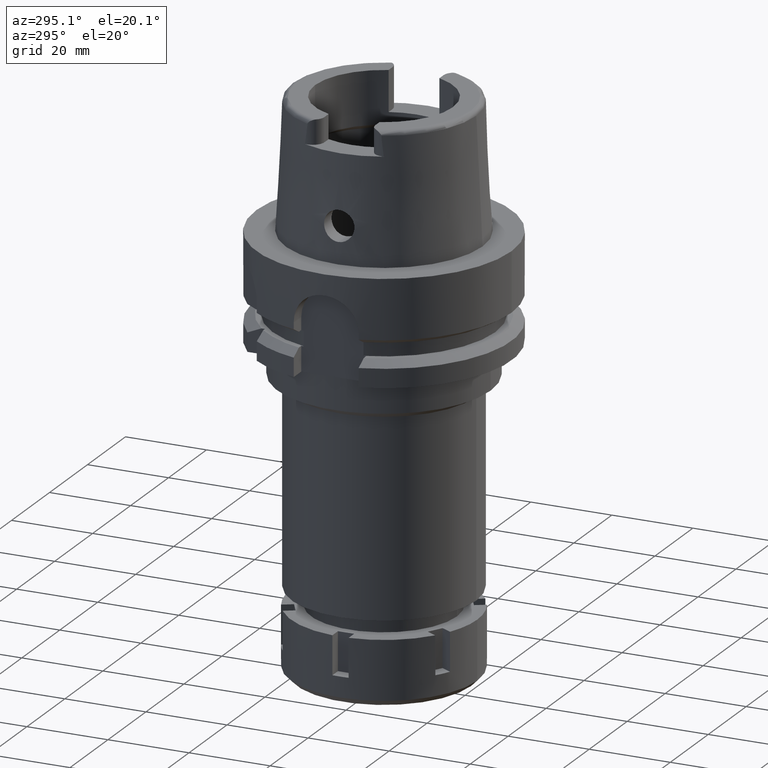
[diagram: clean part render]
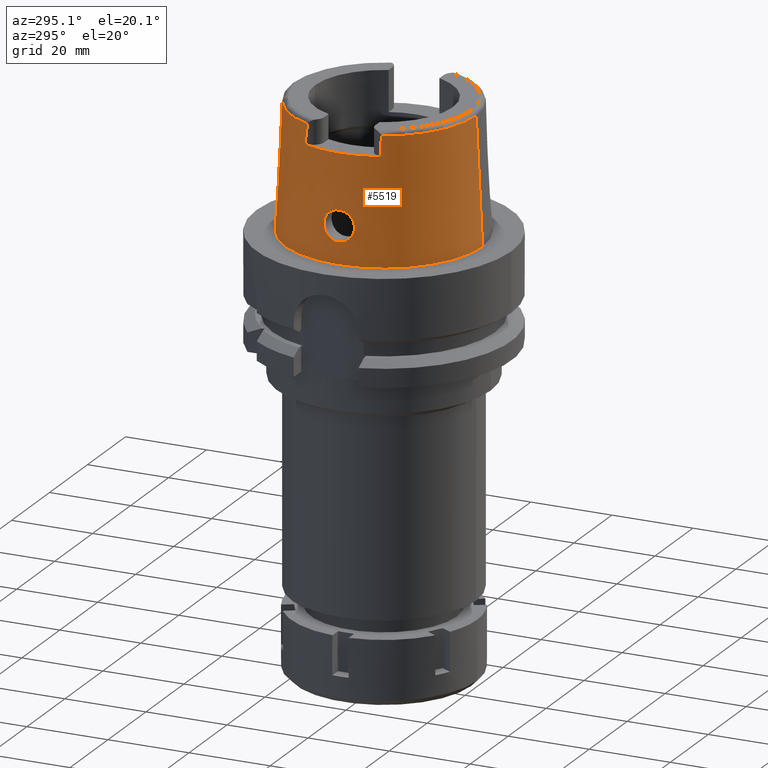
[diagram: same view with one face highlighted and labeled with its STEP entity id]
A machine part, auxiliary view. The second image highlights one B-rep face of the part: STEP entity #5519.
In plain terms, the highlighted conical surface has half-angle 2.862 deg.
Its self-contained STEP definition (entity closure, byte-faithful):
#36 = CARTESIAN_POINT ( 'NONE',  ( -23.54015191037287380, 3.447989320836480687, 10.47451322439491683 ) ) ;
#44 = DIRECTION ( 'NONE',  ( -0.9068002397791221636, -0.4215605829967106200, 0.0000000000000000000 ) ) ;
#68 = CARTESIAN_POINT ( 'NONE',  ( -23.56691753903970721, 3.749964262848872742, 9.032386219081022460 ) ) ;
#72 = VERTEX_POINT ( 'NONE', #5853 ) ;
#98 = CARTESIAN_POINT ( 'NONE',  ( -23.56103989239541363, 3.012420552221876768, 11.24678724374907368 ) ) ;
#114 = CARTESIAN_POINT ( 'NONE',  ( -24.00100737258865990, -1.363275616584290750, 5.506544839683457759 ) ) ;
#129 = CARTESIAN_POINT ( 'NONE',  ( -23.98860588324745891, 1.516759319334733958, 5.570243200973310493 ) ) ;
#148 = ORIENTED_EDGE ( 'NONE', *, *, #4979, .F. ) ;
#160 = CARTESIAN_POINT ( 'NONE',  ( -23.59346511245241373, 2.499006512448506356, 11.79715789010676019 ) ) ;
#236 = CARTESIAN_POINT ( 'NONE',  ( -23.57170940623029054, -2.848131143880767713, 11.44038702985053213 ) ) ;
#239 = CARTESIAN_POINT ( 'NONE',  ( -20.86999859286000003, -9.150003160546999581, 30.54568941686000016 ) ) ;
#266 = CARTESIAN_POINT ( 'NONE',  ( -23.58277489368027702, -2.668665095005497090, 11.63454126838083624 ) ) ;
#302 = CARTESIAN_POINT ( 'NONE',  ( -23.62814355983162073, -1.886057480782853846, 12.24352068107457292 ) ) ;
#304 = CARTESIAN_POINT ( 'NONE',  ( -20.86999859286000003, -9.150003160546999581, 30.54568941686000016 ) ) ;
#309 = CARTESIAN_POINT ( 'NONE',  ( -20.86989332435999600, 9.124125753588000265, 30.75512689856000037 ) ) ;
#336 = CARTESIAN_POINT ( 'NONE',  ( -23.57815765936577890, -2.743201932390839204, 11.55725509302209453 ) ) ;
#356 = CARTESIAN_POINT ( 'NONE',  ( -23.63226854985884984, 1.795856359673729585, 12.29259508203734619 ) ) ;
#367 = CARTESIAN_POINT ( 'NONE',  ( -23.79567430276268070, -2.967514793802037865, 6.706495037305211682 ) ) ;
#402 = CARTESIAN_POINT ( 'NONE',  ( -20.86979790990000083, 9.115619349896000756, 30.82499136742999823 ) ) ;
#408 = CARTESIAN_POINT ( 'NONE',  ( -20.86998097132000041, -9.136996582950001056, 30.65033329006000073 ) ) ;
#415 = CARTESIAN_POINT ( 'NONE',  ( -23.65033733339755884, 1.382311900114638448, 12.48599880230402448 ) ) ;
#465 = DIRECTION ( 'NONE',  ( -0.9164655183265837390, 0.4001136759951928745, 0.0000000000000000000 ) ) ;
#469 = CARTESIAN_POINT ( 'NONE',  ( -23.66775440317695001, 0.8248702147695513576, 12.66021371292152153 ) ) ;
#504 = CARTESIAN_POINT ( 'NONE',  ( -23.73359965308971908, 3.266080570885068202, 7.156199708081000033 ) ) ;
#540 = CARTESIAN_POINT ( 'NONE',  ( -23.53728702803109485, 3.562145524631763038, 10.19867652628040666 ) ) ;
#563 = CARTESIAN_POINT ( 'NONE',  ( -23.83745725765672319, 2.730878181362236923, 6.429694411205649551 ) ) ;
#579 = ORIENTED_EDGE ( 'NONE', *, *, #1868, .T. ) ;
#585 = EDGE_CURVE ( 'NONE', #4876, #1292, #1212, .T. ) ;
#592 = CARTESIAN_POINT ( 'NONE',  ( -23.58855205142285527, 2.577815439622412441, 11.72378848108660065 ) ) ;
#621 = CARTESIAN_POINT ( 'NONE',  ( -23.59485503917043658, 3.730518257026321560, 8.546757930181126284 ) ) ;
#636 = CARTESIAN_POINT ( 'NONE',  ( -23.88292782301238049, -2.441401756219701902, 6.152821432497140641 ) ) ;
#729 = CARTESIAN_POINT ( 'NONE',  ( -23.57441783992937445, -3.748476067472396256, 8.889364669542114683 ) ) ;
#761 = CARTESIAN_POINT ( 'NONE',  ( -23.61430740086958480, -2.137916556045182492, 12.08145266048111743 ) ) ;
#775 = CARTESIAN_POINT ( 'NONE',  ( -24.03360454821701353, 0.9585203070458347963, 5.338868596403109734 ) ) ;
#794 = CARTESIAN_POINT ( 'NONE',  ( -23.59443356411982506, -2.478417112583932713, 11.81691385246704762 ) ) ;
#823 = CARTESIAN_POINT ( 'NONE',  ( -23.53847179762987452, -3.572842404142646089, 10.14068561300276805 ) ) ;
#833 = CARTESIAN_POINT ( 'NONE',  ( -20.86999859286000003, -9.150003160546999581, 30.54568941686000016 ) ) ;
#841 = CARTESIAN_POINT ( 'NONE',  ( -23.61810287954033072, 2.070497700644756467, 12.12659859157066045 ) ) ;
#850 = CARTESIAN_POINT ( 'NONE',  ( -23.56153698330253121, -3.016721148306173106, 11.23152747765557180 ) ) ;
#869 = CARTESIAN_POINT ( 'NONE',  ( -23.60608593090796248, 2.286597065499330395, 11.97474614744296417 ) ) ;
#941 = EDGE_CURVE ( 'NONE', #3218, #2779, #1524, .T. ) ;
#957 = CARTESIAN_POINT ( 'NONE',  ( -23.65921503544926807, 1.129946290387531471, 12.57628079875508931 ) ) ;
#989 = CARTESIAN_POINT ( 'NONE',  ( -23.76351525792791364, 3.127728889925710742, 6.931214969188216557 ) ) ;
#997 = CARTESIAN_POINT ( 'NONE',  ( 0.0000000000000000000, 0.0000000000000000000, 26.00000000000000000 ) ) ;
#1006 = B_SPLINE_CURVE_WITH_KNOTS ( 'NONE', 3,
 ( #3605, #3511, #3074, #304 ),
 .UNSPECIFIED., .F., .F.,
 ( 4, 4 ),
 ( 0.0000000000000000000, 1.000000000000000000 ),
 .UNSPECIFIED. ) ;
#1018 = CARTESIAN_POINT ( 'NONE',  ( -23.75046347256532897, 3.189567739653127454, 7.027381455418323597 ) ) ;
#1045 = CIRCLE ( 'NONE', #5399, 22.77198729362000407 ) ;
#1046 = CARTESIAN_POINT ( 'NONE',  ( -23.69425830394688859, 3.429264908770459641, 7.478993168167073158 ) ) ;
#1063 = CARTESIAN_POINT ( 'NONE',  ( -23.93539193641398910, -2.041468435892298761, 5.854372509278388925 ) ) ;
#1070 = DIRECTION ( 'NONE',  ( 0.0000000000000000000, 0.0000000000000000000, -1.000000000000000000 ) ) ;
#1076 = CARTESIAN_POINT ( 'NONE',  ( -23.84797676352566498, 2.667983412052134629, 6.364725162336206665 ) ) ;
#1088 = B_SPLINE_CURVE_WITH_KNOTS ( 'NONE', 3,
 ( #5099, #3648, #3677, #5504 ),
 .UNSPECIFIED., .F., .F.,
 ( 4, 4 ),
 ( 0.0000000000000000000, 1.000000000000000000 ),
 .UNSPECIFIED. ) ;
#1152 = CARTESIAN_POINT ( 'NONE',  ( -24.05252611746999847, -0.2328530994565557732, 5.249999999999995559 ) ) ;
#1178 = ORIENTED_EDGE ( 'NONE', *, *, #4926, .T. ) ;
#1184 = CARTESIAN_POINT ( 'NONE',  ( -23.78130492704378796, -3.041380346474009677, 6.805389635169555973 ) ) ;
#1212 = LINE ( 'NONE', #3994, #1814 ) ;
#1216 = CARTESIAN_POINT ( 'NONE',  ( -23.54162950235294716, -3.388279096294511294, 10.61919203982067295 ) ) ;
#1246 = CARTESIAN_POINT ( 'NONE',  ( -23.57925905052097448, -3.745616340182254866, 8.803365803678191881 ) ) ;
#1264 = VERTEX_POINT ( 'NONE', #2565 ) ;
#1278 = CARTESIAN_POINT ( 'NONE',  ( -23.64687963688197314, -1.469572237680806470, 12.45021093590777284 ) ) ;
#1292 = VERTEX_POINT ( 'NONE', #4108 ) ;
#1305 = EDGE_CURVE ( 'NONE', #4697, #1264, #3186, .T. ) ;
#1309 = CARTESIAN_POINT ( 'NONE',  ( -23.56990512898250145, -3.750021849353022851, 8.973226420260075997 ) ) ;
#1313 = CARTESIAN_POINT ( 'NONE',  ( -20.86974110888999689, 9.111383544748999697, 30.85992740349999863 ) ) ;
#1326 = CARTESIAN_POINT ( 'NONE',  ( -23.62951562642758319, 1.851945452968903449, 12.26148005253133810 ) ) ;
#1334 = CARTESIAN_POINT ( 'NONE',  ( -23.67751368057999883, -0.4543763338073418812, 12.75000000000000178 ) ) ;
#1357 = VERTEX_POINT ( 'NONE', #4066 ) ;
#1380 = ORIENTED_EDGE ( 'NONE', *, *, #5292, .F. ) ;
#1386 = CARTESIAN_POINT ( 'NONE',  ( -23.67507386122924373, 0.4630800180003414313, 12.72939111368326337 ) ) ;
#1417 = CARTESIAN_POINT ( 'NONE',  ( 0.002481821280839999633, 22.77198688789000158, 30.85992712280000205 ) ) ;
#1444 = DIRECTION ( 'NONE',  ( 0.0000000000000000000, 0.0000000000000000000, -1.000000000000000000 ) ) ;
#1447 = CARTESIAN_POINT ( 'NONE',  ( -23.54704643687553300, 3.272385054277848759, 10.83499652450883133 ) ) ;
#1476 = DIRECTION ( 'NONE',  ( 0.0000000000000000000, -1.000000000000000000, 0.0000000000000000000 ) ) ;
#1481 = CARTESIAN_POINT ( 'NONE',  ( -23.57101470317871517, 2.850008580535533742, 11.45282567346553115 ) ) ;
#1510 = CARTESIAN_POINT ( 'NONE',  ( -23.66072205119347416, 3.550429005101821467, 7.789890488165464255 ) ) ;
#1524 = B_SPLINE_CURVE_WITH_KNOTS ( 'NONE', 3,
 ( #3388, #1152, #3035, #3876, #5274, #4351, #3003, #2018, #114, #2974, #5770, #2052, #3481, #4906, #1526, #2479, #3415, #5306, #1063, #2943, #5367, #5802, #3447, #5338, #636, #4445, #5926, #5429, #5490, #1673, #4571, #4475, #4067, #5894, #367, #1184, #3071, #2111, #1646, #5058, #4602, #4967, #5554, #1770, #2235, #3197, #5957, #4132, #3101, #1246, #729, #3537, #1309, #3135, #4537, #3569, #6025, #823, #5085, #3999, #2664, #2602, #2695, #5462, #1216, #3603, #1708, #850, #4099, #236, #3664, #336, #4503, #2172, #266, #5026, #2139, #794, #5523, #4032, #4997, #761, #2633, #302, #2203, #5991, #1739, #3634, #1278, #3169, #1334, #3259 ),
 .UNSPECIFIED., .F., .F.,
 ( 4, 2, 2, 1, 1, 2, 2, 2, 2, 1, 1, 2, 2, 2, 2, 1, 1, 2, 2, 2, 2, 2, 2, 1, 2, 2, 2, 2, 1, 2, 2, 2, 2, 1, 1, 1, 2, 2, 2, 2, 2, 1, 1, 2, 2, 2, 2, 2, 2, 1, 2, 2, 4 ),
 ( 0.0000000000000000000, 0.06250000000000342781, 0.09375000000000512090, 0.1093750000000059674, 0.1171875000000063699, 0.1210937500000065781, 0.1250000000000067724, 0.1562500000000082989, 0.1718750000000090206, 0.1796875000000093536, 0.1835937500000094369, 0.1855468750000095202, 0.1875000000000095757, 0.2187500000000113520, 0.2343750000000123235, 0.2421875000000127953, 0.2460937500000131561, 0.2480468750000133227, 0.2500000000000134892, 0.2812500000000171529, 0.2968750000000189848, 0.3125000000000208722, 0.3437500000000243694, 0.3593750000000259792, 0.3671875000000267009, 0.3750000000000274225, 0.4375000000000323630, 0.4687500000000349165, 0.4843750000000361933, 0.4921875000000368039, 0.5000000000000374145, 0.5625000000000414113, 0.5937500000000434097, 0.6093750000000444089, 0.6171875000000449640, 0.6210937500000452971, 0.6230468750000454081, 0.6250000000000455191, 0.6875000000000429656, 0.7187500000000414113, 0.7343750000000407452, 0.7421875000000401901, 0.7460937500000400791, 0.7480468750000399680, 0.7500000000000397460, 0.7812500000000343059, 0.7968750000000316414, 0.8125000000000288658, 0.8437500000000236478, 0.8593750000000210942, 0.8671875000000197620, 0.8750000000000185407, 1.000000000000000000 ),
 .UNSPECIFIED. ) ;
#1526 = CARTESIAN_POINT ( 'NONE',  ( -23.95673048487035928, -1.851298314772472864, 5.738225476261153091 ) ) ;
#1540 = CARTESIAN_POINT ( 'NONE',  ( -23.84284047655973282, 2.698808894989606522, 6.396316340514641929 ) ) ;
#1571 = CARTESIAN_POINT ( 'NONE',  ( -23.88277645787942660, 2.457004479654939288, 6.153120659154761363 ) ) ;
#1646 = CARTESIAN_POINT ( 'NONE',  ( -23.73884828278095327, -3.242259816385143267, 7.111729196402851727 ) ) ;
#1652 = CARTESIAN_POINT ( 'NONE',  ( 0.0000000000000000000, 0.0000000000000000000, 15.42996356139999925 ) ) ;
#1673 = CARTESIAN_POINT ( 'NONE',  ( -23.85448299276704276, -2.627824370506816720, 6.324721347766551816 ) ) ;
#1708 = CARTESIAN_POINT ( 'NONE',  ( -23.55720861382677001, -3.090776204462026389, 11.12709628035642950 ) ) ;
#1739 = CARTESIAN_POINT ( 'NONE',  ( -23.64333170165051001, -1.554990373344697696, 12.41255019624429146 ) ) ;
#1770 = CARTESIAN_POINT ( 'NONE',  ( -23.68875131572162474, -3.449603174607116518, 7.528992881188016462 ) ) ;
#1771 = ORIENTED_EDGE ( 'NONE', *, *, #1305, .F. ) ;
#1814 = VECTOR ( 'NONE', #4441, 1000.000000000000000 ) ;
#1837 = ORIENTED_EDGE ( 'NONE', *, *, #941, .F. ) ;
#1849 = CARTESIAN_POINT ( 'NONE',  ( -23.67751368057999883, 0.0000000000000000000, 12.75000000000000000 ) ) ;
#1868 = EDGE_CURVE ( 'NONE', #4697, #5972, #1045, .T. ) ;
#1878 = DIRECTION ( 'NONE',  ( 0.0000000000000000000, 0.0000000000000000000, 1.000000000000000000 ) ) ;
#1911 = CARTESIAN_POINT ( 'NONE',  ( -23.94773198641448531, 1.937156626673963267, 5.786713526507420546 ) ) ;
#1941 = CARTESIAN_POINT ( 'NONE',  ( -23.65165784972642982, 3.579964827622238666, 7.881784108458243843 ) ) ;
#1972 = CARTESIAN_POINT ( 'NONE',  ( -23.97386246121757125, 1.680484946675989688, 5.647122889465446605 ) ) ;
#2000 = CARTESIAN_POINT ( 'NONE',  ( -23.99224149937801087, 1.473275722555198675, 5.551482136548296253 ) ) ;
#2018 = CARTESIAN_POINT ( 'NONE',  ( -24.00434942516337244, -1.319161821836716708, 5.489437340683026356 ) ) ;
#2033 = CARTESIAN_POINT ( 'NONE',  ( -23.76035813224623183, 3.142852042672452662, 6.954258488816503991 ) ) ;
#2041 = B_SPLINE_CURVE_WITH_KNOTS ( 'NONE', 3,
 ( #1849, #3737, #1386, #469, #5194, #957, #5572, #4646, #415, #5543, #4151, #4591, #3682, #5073, #356, #1326, #2225, #4121, #3214, #6014, #841, #2714, #4619, #869, #4857, #160, #592, #3800, #2461, #5817, #1481, #98, #2493, #1447, #4768, #3833, #3462, #36, #3342, #4301, #3429, #540, #5692, #5352, #5756, #3373, #4333, #5724, #2400, #68, #5318, #621, #2434, #5229, #1941, #1510, #5287, #3400, #2957, #4394, #4738, #1046, #2832, #4365, #504, #5261, #1018, #2367, #2033, #2924, #989, #2868, #3923, #2895, #5783, #563, #1540, #4796, #1076, #1571, #4272, #1911, #4827, #1972, #3860, #129, #2000, #3888, #4487, #4553, #775, #4429, #3981 ),
 .UNSPECIFIED., .F., .F.,
 ( 4, 2, 2, 1, 1, 1, 2, 2, 2, 2, 1, 1, 2, 2, 2, 1, 1, 2, 2, 2, 2, 1, 1, 1, 2, 2, 2, 2, 1, 2, 2, 2, 2, 1, 1, 1, 2, 2, 2, 2, 1, 1, 2, 2, 2, 1, 1, 2, 2, 2, 2, 1, 1, 1, 2, 2, 4 ),
 ( 0.0000000000000000000, 0.06250000000000822953, 0.09375000000001237899, 0.1093750000000144745, 0.1171875000000155154, 0.1210937500000159733, 0.1230468750000160982, 0.1250000000000162370, 0.1562500000000194289, 0.1718750000000210387, 0.1796875000000217881, 0.1835937500000220379, 0.1855468750000222045, 0.1875000000000223987, 0.2187500000000257572, 0.2343750000000273670, 0.2421875000000282552, 0.2460937500000286993, 0.2500000000000291434, 0.3125000000000341394, 0.3437500000000364153, 0.3593750000000373590, 0.3671875000000376366, 0.3710937500000377476, 0.3730468750000378031, 0.3750000000000378031, 0.4375000000000368594, 0.4687500000000363598, 0.4843750000000361378, 0.4921875000000357492, 0.5000000000000354161, 0.5625000000000294209, 0.5937500000000266454, 0.6093750000000253131, 0.6171875000000244249, 0.6210937500000240918, 0.6230468750000239808, 0.6250000000000238698, 0.6562500000000216493, 0.6718750000000205391, 0.6796875000000199840, 0.6835937500000197620, 0.6855468750000196509, 0.6875000000000195399, 0.7187500000000178746, 0.7343750000000169864, 0.7421875000000165423, 0.7460937500000164313, 0.7500000000000162093, 0.8125000000000126565, 0.8437500000000108802, 0.8593750000000099920, 0.8671875000000095479, 0.8710937500000093259, 0.8730468750000092149, 0.8750000000000092149, 1.000000000000000000 ),
 .UNSPECIFIED. ) ;
#2052 = CARTESIAN_POINT ( 'NONE',  ( -23.98800177665698996, -1.527516860990947078, 5.573310029037864766 ) ) ;
#2092 = FACE_BOUND ( 'NONE', #2472, .T. ) ;
#2111 = CARTESIAN_POINT ( 'NONE',  ( -23.75271649868410506, -3.178882622800520252, 7.007071754929362406 ) ) ;
#2139 = CARTESIAN_POINT ( 'NONE',  ( -23.58894684929540730, -2.569306570476092233, 11.73426750394165374 ) ) ;
#2172 = CARTESIAN_POINT ( 'NONE',  ( -23.58199175908293554, -2.681286608748152833, 11.62169472018582894 ) ) ;
#2189 = CIRCLE ( 'NONE', #3966, 22.77198729362000051 ) ;
#2203 = CARTESIAN_POINT ( 'NONE',  ( -23.63588957464518714, -1.723551568996704253, 12.33101407927869175 ) ) ;
#2225 = CARTESIAN_POINT ( 'NONE',  ( -23.62512546505643840, 1.938105461621681291, 12.21050786373280950 ) ) ;
#2235 = CARTESIAN_POINT ( 'NONE',  ( -23.65773117225645450, -3.565473850774087072, 7.807593779717766580 ) ) ;
#2241 = CARTESIAN_POINT ( 'NONE',  ( -20.87000040551000168, 9.145651821178999441, 30.58051936381000147 ) ) ;
#2273 = CARTESIAN_POINT ( 'NONE',  ( -20.86989310975999601, -9.124125559690000387, 30.75513691599000055 ) ) ;
#2367 = CARTESIAN_POINT ( 'NONE',  ( -23.75735510380719617, 3.157153808395915195, 6.976287299390322438 ) ) ;
#2400 = CARTESIAN_POINT ( 'NONE',  ( -23.56539950975428965, 3.749577530161828154, 9.063635417275545336 ) ) ;
#2434 = CARTESIAN_POINT ( 'NONE',  ( -23.62367492180606732, 3.662756618688840504, 8.186588872576610498 ) ) ;
#2461 = CARTESIAN_POINT ( 'NONE',  ( -23.58504133083504328, 2.632995293878571896, 11.67021953350786667 ) ) ;
#2472 = EDGE_LOOP ( 'NONE', ( #148, #1837 ) ) ;
#2479 = CARTESIAN_POINT ( 'NONE',  ( -23.94784012111648863, -1.932784588658743363, 5.786304563692907799 ) ) ;
#2493 = CARTESIAN_POINT ( 'NONE',  ( -23.55004845358493881, 3.212770625409161251, 10.93795318159098251 ) ) ;
#2500 = CARTESIAN_POINT ( 'NONE',  ( -20.86974110888999689, 9.111383544748999697, 30.85992740349999863 ) ) ;
#2565 = CARTESIAN_POINT ( 'NONE',  ( -20.87000040551000168, 9.149999089201999780, 30.54560915664000120 ) ) ;
#2578 = AXIS2_PLACEMENT_3D ( 'NONE', #3709, #1878, #3767 ) ;
#2602 = CARTESIAN_POINT ( 'NONE',  ( -23.53942262641070116, -3.476502138168415357, 10.40587873844461164 ) ) ;
#2633 = CARTESIAN_POINT ( 'NONE',  ( -23.62274801638771748, -1.989716033756252056, 12.18083022222286438 ) ) ;
#2664 = CARTESIAN_POINT ( 'NONE',  ( -23.53922624105577199, -3.485341141543158106, 10.38395500107068514 ) ) ;
#2680 = EDGE_CURVE ( 'NONE', #1357, #2747, #1006, .T. ) ;
#2695 = CARTESIAN_POINT ( 'NONE',  ( -23.53956059657452826, -3.470560643975962645, 10.42048265050486222 ) ) ;
#2714 = CARTESIAN_POINT ( 'NONE',  ( -23.61763684599933555, 2.079045084717521696, 12.12091824298399700 ) ) ;
#2724 = ORIENTED_EDGE ( 'NONE', *, *, #5310, .T. ) ;
#2745 = ORIENTED_EDGE ( 'NONE', *, *, #4041, .T. ) ;
#2747 = VERTEX_POINT ( 'NONE', #239 ) ;
#2763 = VECTOR ( 'NONE', #3323, 1000.000000000000000 ) ;
#2779 = VERTEX_POINT ( 'NONE', #2784 ) ;
#2784 = CARTESIAN_POINT ( 'NONE',  ( -23.67751368057999883, 0.0000000000000000000, 12.75000000000000000 ) ) ;
#2832 = CARTESIAN_POINT ( 'NONE',  ( -23.70631668022097926, 3.382161452730635620, 7.375624312459327037 ) ) ;
#2868 = CARTESIAN_POINT ( 'NONE',  ( -23.77856689828033510, 3.055154359097384642, 6.821980931140378068 ) ) ;
#2892 = CARTESIAN_POINT ( 'NONE',  ( 0.0000000000000000000, 0.0000000000000000000, 30.85992712280000205 ) ) ;
#2895 = CARTESIAN_POINT ( 'NONE',  ( -23.81419107509644917, 2.864606967306825513, 6.579186969548515229 ) ) ;
#2919 = ORIENTED_EDGE ( 'NONE', *, *, #5241, .F. ) ;
#2924 = CARTESIAN_POINT ( 'NONE',  ( -23.76237114502613679, 3.133225335388443167, 6.939544640039556178 ) ) ;
#2943 = CARTESIAN_POINT ( 'NONE',  ( -23.93378507936084887, -2.055046190087438163, 5.863226045483164839 ) ) ;
#2957 = CARTESIAN_POINT ( 'NONE',  ( -23.68023325704111670, 3.481230152447602588, 7.605867681295436000 ) ) ;
#2974 = CARTESIAN_POINT ( 'NONE',  ( -23.99874281237409335, -1.392648646391940970, 5.518150044643186369 ) ) ;
#2981 = DIRECTION ( 'NONE',  ( 0.0000000000000000000, 0.0000000000000000000, -1.000000000000000000 ) ) ;
#3003 = CARTESIAN_POINT ( 'NONE',  ( -24.01176403360784306, -1.215880197527727580, 5.451616748869384743 ) ) ;
#3035 = CARTESIAN_POINT ( 'NONE',  ( -24.04785089638186690, -0.4709048457754619332, 5.271751802949964372 ) ) ;
#3071 = CARTESIAN_POINT ( 'NONE',  ( -23.77393222552724339, -3.077867949395594493, 6.856902168362529082 ) ) ;
#3074 = CARTESIAN_POINT ( 'NONE',  ( -20.87000000000000099, -9.333063949567938167, 29.07564004621991671 ) ) ;
#3101 = CARTESIAN_POINT ( 'NONE',  ( -23.58466910634329494, -3.739696144556093227, 8.715997388630951193 ) ) ;
#3135 = CARTESIAN_POINT ( 'NONE',  ( -23.55640691701997014, -3.749815092837035735, 9.240314922861800895 ) ) ;
#3169 = CARTESIAN_POINT ( 'NONE',  ( -23.66771078659663274, -0.9493669583230549547, 12.66637515367803601 ) ) ;
#3186 = B_SPLINE_CURVE_WITH_KNOTS ( 'NONE', 3,
 ( #1313, #402, #309, #6062, #2241, #5966 ),
 .UNSPECIFIED., .F., .F.,
 ( 4, 1, 1, 4 ),
 ( 0.0000000000000000000, 0.3333333333333000081, 0.6666666666667000474, 1.000000000000000000 ),
 .UNSPECIFIED. ) ;
#3197 = CARTESIAN_POINT ( 'NONE',  ( -23.63420283303906189, -3.637675456718706624, 8.056210906386020554 ) ) ;
#3214 = CARTESIAN_POINT ( 'NONE',  ( -23.62011411351814871, 2.033323669334698991, 12.15097484603318456 ) ) ;
#3218 = VERTEX_POINT ( 'NONE', #5052 ) ;
#3227 = LINE ( 'NONE', #6117, #2763 ) ;
#3259 = CARTESIAN_POINT ( 'NONE',  ( -23.67751368057999883, 0.0000000000000000000, 12.75000000000000000 ) ) ;
#3310 = VERTEX_POINT ( 'NONE', #6075 ) ;
#3323 = DIRECTION ( 'NONE',  ( -8.032179027593385064E-05, 0.04993928193351242217, -0.9987522523971473776 ) ) ;
#3342 = CARTESIAN_POINT ( 'NONE',  ( -23.53993802634415999, 3.455863299216233475, 10.45586886952354000 ) ) ;
#3373 = CARTESIAN_POINT ( 'NONE',  ( -23.55519744211352062, 3.738326954786749479, 9.301694050972850292 ) ) ;
#3378 = CIRCLE ( 'NONE', #4666, 23.01499170873999134 ) ;
#3385 = B_SPLINE_CURVE_WITH_KNOTS ( 'NONE', 3,
 ( #833, #4613, #408, #2273, #4174, #6067 ),
 .UNSPECIFIED., .F., .F.,
 ( 4, 1, 1, 4 ),
 ( 0.0000000000000000000, 0.3333333333333000081, 0.6666666666667000474, 1.000000000000000000 ),
 .UNSPECIFIED. ) ;
#3388 = CARTESIAN_POINT ( 'NONE',  ( -24.05252611746999847, 7.219293415727999012E-14, 5.250000000000000000 ) ) ;
#3400 = CARTESIAN_POINT ( 'NONE',  ( -23.67772318263078191, 3.490410505467184343, 7.628865223803900086 ) ) ;
#3415 = CARTESIAN_POINT ( 'NONE',  ( -23.94328768515882899, -1.973549719598611363, 5.811049988336836947 ) ) ;
#3429 = CARTESIAN_POINT ( 'NONE',  ( -23.53974544099224886, 3.463206008842333095, 10.43832050151468138 ) ) ;
#3447 = CARTESIAN_POINT ( 'NONE',  ( -23.90984481138883311, -2.248532337052346008, 5.996379461385863863 ) ) ;
#3462 = CARTESIAN_POINT ( 'NONE',  ( -23.54070526107831896, 3.429138922011954360, 10.51815876258869231 ) ) ;
#3481 = CARTESIAN_POINT ( 'NONE',  ( -23.97843604537387918, -1.634837491098617202, 5.622912413270252152 ) ) ;
#3511 = CARTESIAN_POINT ( 'NONE',  ( -20.87000000000000099, -9.517135092905938620, 27.56041024059991429 ) ) ;
#3537 = CARTESIAN_POINT ( 'NONE',  ( -23.57131677625290322, -3.749725007092941542, 8.946377467975779041 ) ) ;
#3543 = DIRECTION ( 'NONE',  ( 0.0000000000000000000, -1.000000000000000000, 0.0000000000000000000 ) ) ;
#3569 = CARTESIAN_POINT ( 'NONE',  ( -23.54084231469523303, -3.656277190702760915, 9.842103162098831959 ) ) ;
#3603 = CARTESIAN_POINT ( 'NONE',  ( -23.54624441736782003, -3.288685480653229298, 10.81845878073716172 ) ) ;
#3605 = CARTESIAN_POINT ( 'NONE',  ( -20.86999931535000385, -9.702216590560999165, 26.00000000000000000 ) ) ;
#3634 = CARTESIAN_POINT ( 'NONE',  ( -23.64574005641221177, -1.497396058325533019, 12.43821159145169197 ) ) ;
#3648 = CARTESIAN_POINT ( 'NONE',  ( -20.87000000000000099, 9.332993010332399919, 29.07609872767648440 ) ) ;
#3664 = CARTESIAN_POINT ( 'NONE',  ( -23.57596613932127738, -2.778774387570352111, 11.51835717681876403 ) ) ;
#3677 = CARTESIAN_POINT ( 'NONE',  ( -20.87000000000000099, 9.517059732233400737, 27.56089567546315422 ) ) ;
#3682 = CARTESIAN_POINT ( 'NONE',  ( -23.64446850966981728, 1.530038649737696099, 12.42518562855270403 ) ) ;
#3709 = CARTESIAN_POINT ( 'NONE',  ( 0.0000000000000000000, 0.0000000000000000000, 6.821210263297000155E-13 ) ) ;
#3715 = CARTESIAN_POINT ( 'NONE',  ( -20.86974104062000279, -9.111384045655000818, 30.85992599245000179 ) ) ;
#3737 = CARTESIAN_POINT ( 'NONE',  ( -23.67751368058000239, 0.2267574783734725985, 12.75000000000000711 ) ) ;
#3767 = DIRECTION ( 'NONE',  ( 0.0000000000000000000, 1.000000000000000000, 0.0000000000000000000 ) ) ;
#3800 = CARTESIAN_POINT ( 'NONE',  ( -23.58644571727825223, 2.611002749454905292, 11.69172829554779192 ) ) ;
#3833 = CARTESIAN_POINT ( 'NONE',  ( -23.54202911437633006, 3.389495674867657016, 10.60598604961911740 ) ) ;
#3860 = CARTESIAN_POINT ( 'NONE',  ( -23.98098753359375479, 1.604379437140016407, 5.609746666140990712 ) ) ;
#3876 = CARTESIAN_POINT ( 'NONE',  ( -24.03382523311746510, -0.8289318729377443962, 5.340745506503633777 ) ) ;
#3888 = CARTESIAN_POINT ( 'NONE',  ( -23.99376242942761905, 1.454713418148981363, 5.543650227762834781 ) ) ;
#3891 = ORIENTED_EDGE ( 'NONE', *, *, #585, .F. ) ;
#3923 = CARTESIAN_POINT ( 'NONE',  ( -23.79278528613815880, 2.981769001721901624, 6.722547729905981484 ) ) ;
#3966 = AXIS2_PLACEMENT_3D ( 'NONE', #4668, #1070, #1476 ) ;
#3981 = CARTESIAN_POINT ( 'NONE',  ( -24.05252611746999847, 7.219293415727999012E-14, 5.250000000000000000 ) ) ;
#3994 = CARTESIAN_POINT ( 'NONE',  ( -0.002481821280835999795, -22.77198688789000158, 30.85992712280000205 ) ) ;
#3999 = CARTESIAN_POINT ( 'NONE',  ( -23.53884199779663078, -3.505452944090190037, 10.33267812459756740 ) ) ;
#4032 = CARTESIAN_POINT ( 'NONE',  ( -23.60564501675521498, -2.288018782263086415, 11.97173918960759309 ) ) ;
#4041 = EDGE_CURVE ( 'NONE', #5972, #3310, #3227, .T. ) ;
#4067 = CARTESIAN_POINT ( 'NONE',  ( -23.82423750646130145, -2.811376488531615703, 6.515266915515836921 ) ) ;
#4066 = CARTESIAN_POINT ( 'NONE',  ( -20.86999931535000385, -9.702216590560999165, 26.00000000000000000 ) ) ;
#4074 = AXIS2_PLACEMENT_3D ( 'NONE', #1652, #2981, #3543 ) ;
#4099 = CARTESIAN_POINT ( 'NONE',  ( -23.56903999350033985, -2.891983977047921428, 11.38817587690699185 ) ) ;
#4108 = CARTESIAN_POINT ( 'NONE',  ( 0.0000000000000000000, -24.31503482328999866, 3.801403636316999971E-13 ) ) ;
#4121 = CARTESIAN_POINT ( 'NONE',  ( -23.62286519031481191, 1.981690897930694195, 12.18394672593112027 ) ) ;
#4132 = CARTESIAN_POINT ( 'NONE',  ( -23.59624767829552638, -3.723507910099257412, 8.539643843402899392 ) ) ;
#4151 = CARTESIAN_POINT ( 'NONE',  ( -23.64884342057244737, 1.420495663004464726, 12.47055615441131060 ) ) ;
#4174 = CARTESIAN_POINT ( 'NONE',  ( -20.86979783671000277, -9.115619593650000851, 30.82499210252000310 ) ) ;
#4272 = CARTESIAN_POINT ( 'NONE',  ( -23.91129758507922176, 2.248322633232652468, 5.988573699244374993 ) ) ;
#4281 = DIRECTION ( 'NONE',  ( 0.0000000000000000000, 0.0000000000000000000, -1.000000000000000000 ) ) ;
#4301 = CARTESIAN_POINT ( 'NONE',  ( -23.53980060727470303, 3.461067489917918127, 10.44345319922425475 ) ) ;
#4333 = CARTESIAN_POINT ( 'NONE',  ( -23.55866661462034983, 3.744823189081417869, 9.212155705762087976 ) ) ;
#4351 = CARTESIAN_POINT ( 'NONE',  ( -24.01746195930899574, -1.126857229430674900, 5.422774454623032092 ) ) ;
#4365 = CARTESIAN_POINT ( 'NONE',  ( -23.72651505817914597, 3.296925417750265375, 7.212107132279789390 ) ) ;
#4392 = EDGE_LOOP ( 'NONE', ( #2919, #1771, #579, #2745, #1178, #3891, #2724, #1380, #4814, #5463 ) ) ;
#4394 = CARTESIAN_POINT ( 'NONE',  ( -23.68191438677636995, 3.475051656479275941, 7.590537591431560038 ) ) ;
#4429 = CARTESIAN_POINT ( 'NONE',  ( -24.05252611746999847, 0.4680681634306783634, 5.250000000000007994 ) ) ;
#4441 = DIRECTION ( 'NONE',  ( 8.032179027582384478E-05, -0.04993928193351242217, -0.9987522523971473776 ) ) ;
#4445 = CARTESIAN_POINT ( 'NONE',  ( -23.87190571517340132, -2.515512975001784834, 6.218671800159545349 ) ) ;
#4472 = CONICAL_SURFACE ( 'NONE', #4074, 23.54351105844999736, 0.04996004983832824653 ) ;
#4475 = CARTESIAN_POINT ( 'NONE',  ( -23.83840625619255960, -2.728019530655858560, 6.424025290916222097 ) ) ;
#4487 = CARTESIAN_POINT ( 'NONE',  ( -23.99476811809419630, 1.442355273349188671, 5.538474882016829248 ) ) ;
#4503 = CARTESIAN_POINT ( 'NONE',  ( -23.58082495137429646, -2.700103139108140038, 11.60240386497697251 ) ) ;
#4537 = CARTESIAN_POINT ( 'NONE',  ( -23.54801636245127483, -3.727011815549662543, 9.481544857966250461 ) ) ;
#4553 = CARTESIAN_POINT ( 'NONE',  ( -23.99517011067188577, 1.437389627824189553, 5.536407274285328306 ) ) ;
#4566 = VERTEX_POINT ( 'NONE', #3715 ) ;
#4571 = CARTESIAN_POINT ( 'NONE',  ( -23.85335397022608817, -2.634889589390719600, 6.331682858360571764 ) ) ;
#4591 = CARTESIAN_POINT ( 'NONE',  ( -23.64847130703965306, 1.429869335012500464, 12.46670079006492493 ) ) ;
#4602 = CARTESIAN_POINT ( 'NONE',  ( -23.70836825222863453, -3.372634424931737485, 7.358439724823442774 ) ) ;
#4613 = CARTESIAN_POINT ( 'NONE',  ( -20.86999859286000003, -9.145656142287998946, 30.58059766504999999 ) ) ;
#4619 = CARTESIAN_POINT ( 'NONE',  ( -23.61168907283054708, 2.187702322282799816, 12.04821248123502819 ) ) ;
#4646 = CARTESIAN_POINT ( 'NONE',  ( -23.65237210461392792, 1.328818248363927923, 12.50693909513906910 ) ) ;
#4666 = AXIS2_PLACEMENT_3D ( 'NONE', #997, #4281, #44 ) ;
#4668 = CARTESIAN_POINT ( 'NONE',  ( 0.0000000000000000000, 0.0000000000000000000, 30.85992712280000205 ) ) ;
#4697 = VERTEX_POINT ( 'NONE', #2500 ) ;
#4738 = CARTESIAN_POINT ( 'NONE',  ( -23.68294143875150581, 3.471255696851963890, 7.581223713503923101 ) ) ;
#4768 = CARTESIAN_POINT ( 'NONE',  ( -23.54353610615254411, 3.352078703032027374, 10.68207384373702951 ) ) ;
#4796 = CARTESIAN_POINT ( 'NONE',  ( -23.84643091847781093, 2.677292862383973571, 6.374197079106294517 ) ) ;
#4814 = ORIENTED_EDGE ( 'NONE', *, *, #2680, .F. ) ;
#4827 = CARTESIAN_POINT ( 'NONE',  ( -23.95881890528215763, 1.833686935349300828, 5.726874502782729692 ) ) ;
#4857 = CARTESIAN_POINT ( 'NONE',  ( -23.59767336137853988, 2.429165160286044234, 11.85752372159387846 ) ) ;
#4876 = VERTEX_POINT ( 'NONE', #5388 ) ;
#4906 = CARTESIAN_POINT ( 'NONE',  ( -23.96237138315768433, -1.797033627110552478, 5.708055484866074281 ) ) ;
#4926 = EDGE_CURVE ( 'NONE', #3310, #1292, #5848, .T. ) ;
#4967 = CARTESIAN_POINT ( 'NONE',  ( -23.69843216866325619, -3.412113823055332951, 7.444052452858733737 ) ) ;
#4979 = EDGE_CURVE ( 'NONE', #2779, #3218, #2041, .T. ) ;
#4997 = CARTESIAN_POINT ( 'NONE',  ( -23.61134330756766175, -2.189585886832136286, 12.04499218442736463 ) ) ;
#5026 = CARTESIAN_POINT ( 'NONE',  ( -23.58322961453809796, -2.661341483555501597, 11.64193495692867941 ) ) ;
#5052 = CARTESIAN_POINT ( 'NONE',  ( -24.05252611746999847, 7.219293415727999012E-14, 5.250000000000000000 ) ) ;
#5058 = CARTESIAN_POINT ( 'NONE',  ( -23.71845936191467175, -3.330340531160006723, 7.275134560993612887 ) ) ;
#5073 = CARTESIAN_POINT ( 'NONE',  ( -23.64000576770419570, 1.632451476339608076, 12.37827351360794559 ) ) ;
#5085 = CARTESIAN_POINT ( 'NONE',  ( -23.53836946822116971, -3.543627727101036129, 10.22966704482990963 ) ) ;
#5099 = CARTESIAN_POINT ( 'NONE',  ( -20.87000040551000168, 9.149999089201999780, 30.54560915664000120 ) ) ;
#5194 = CARTESIAN_POINT ( 'NONE',  ( -23.66470462898849192, 0.9466540275161444695, 12.63078476847733533 ) ) ;
#5229 = CARTESIAN_POINT ( 'NONE',  ( -23.63427313911561001, 3.633817449919333864, 8.065071912339140781 ) ) ;
#5241 = EDGE_CURVE ( 'NONE', #1264, #72, #1088, .T. ) ;
#5261 = CARTESIAN_POINT ( 'NONE',  ( -23.74475424884232666, 3.215749376389867464, 7.070608541211359288 ) ) ;
#5274 = CARTESIAN_POINT ( 'NONE',  ( -24.02798120675729976, -0.9484159891282429866, 5.369792515070694883 ) ) ;
#5287 = CARTESIAN_POINT ( 'NONE',  ( -23.67194768368788615, 3.511222110215380887, 7.682537935708277921 ) ) ;
#5292 = EDGE_CURVE ( 'NONE', #2747, #4566, #3385, .T. ) ;
#5306 = CARTESIAN_POINT ( 'NONE',  ( -23.93778881523363466, -2.021098280389719282, 5.841184005798087497 ) ) ;
#5310 = EDGE_CURVE ( 'NONE', #4876, #4566, #2189, .T. ) ;
#5318 = CARTESIAN_POINT ( 'NONE',  ( -23.57960814313737430, 3.750262211809899160, 8.780894792864417653 ) ) ;
#5338 = CARTESIAN_POINT ( 'NONE',  ( -23.88992228073443513, -2.392550152946395947, 6.111750137483795697 ) ) ;
#5352 = CARTESIAN_POINT ( 'NONE',  ( -23.54564729107570287, 3.703537863406309416, 9.600989314099118488 ) ) ;
#5367 = CARTESIAN_POINT ( 'NONE',  ( -23.93281811390623659, -2.063162690091981499, 5.868562227214598970 ) ) ;
#5388 = CARTESIAN_POINT ( 'NONE',  ( 0.0000000000000000000, -22.77198729362000051, 30.85992712280000205 ) ) ;
#5399 = AXIS2_PLACEMENT_3D ( 'NONE', #2892, #1444, #465 ) ;
#5429 = CARTESIAN_POINT ( 'NONE',  ( -23.85944572753478710, -2.596507397446020882, 6.294232208687028596 ) ) ;
#5462 = CARTESIAN_POINT ( 'NONE',  ( -23.53964912520030595, -3.466929244232473284, 10.42931466188833944 ) ) ;
#5463 = ORIENTED_EDGE ( 'NONE', *, *, #5569, .T. ) ;
#5490 = CARTESIAN_POINT ( 'NONE',  ( -23.85647471693984301, -2.615292626434092327, 6.312469299255351274 ) ) ;
#5504 = CARTESIAN_POINT ( 'NONE',  ( -20.87000000000000099, 9.702213322398998585, 26.00000000000000000 ) ) ;
#5519 = ADVANCED_FACE ( 'NONE', ( #5902, #2092 ), #4472, .T. ) ;
#5523 = CARTESIAN_POINT ( 'NONE',  ( -23.60282231834748501, -2.336336238186814462, 11.93390469190419978 ) ) ;
#5543 = CARTESIAN_POINT ( 'NONE',  ( -23.64944384486578954, 1.405224239576865042, 12.47676757722490493 ) ) ;
#5554 = CARTESIAN_POINT ( 'NONE',  ( -23.69184256320204796, -3.437786402563248966, 7.501628163207997524 ) ) ;
#5569 = EDGE_CURVE ( 'NONE', #1357, #72, #3378, .T. ) ;
#5572 = CARTESIAN_POINT ( 'NONE',  ( -23.65624150561551886, 1.221743537697751458, 12.54644022322419161 ) ) ;
#5692 = CARTESIAN_POINT ( 'NONE',  ( -23.53848312544273469, 3.633204726271737961, 9.960128565546670032 ) ) ;
#5724 = CARTESIAN_POINT ( 'NONE',  ( -23.56263922645677056, 3.748100313225324776, 9.122984401557767242 ) ) ;
#5756 = CARTESIAN_POINT ( 'NONE',  ( -23.54893034953928321, 3.720957382153694759, 9.481047861762462503 ) ) ;
#5770 = CARTESIAN_POINT ( 'NONE',  ( -23.99747617538182354, -1.408772115820143167, 5.524649019609420009 ) ) ;
#5783 = CARTESIAN_POINT ( 'NONE',  ( -23.82491352136847240, 2.804256079748240538, 6.508953033386768894 ) ) ;
#5802 = CARTESIAN_POINT ( 'NONE',  ( -23.92171204180938204, -2.155938832782893666, 5.929920641631032829 ) ) ;
#5817 = CARTESIAN_POINT ( 'NONE',  ( -23.58442557360248415, 2.642587258543595219, 11.66073881262417089 ) ) ;
#5848 = CIRCLE ( 'NONE', #2578, 24.31503482328999866 ) ;
#5853 = CARTESIAN_POINT ( 'NONE',  ( -20.87000000000000099, 9.702213322398998585, 26.00000000000000000 ) ) ;
#5894 = CARTESIAN_POINT ( 'NONE',  ( -23.80283391237368562, -2.929361065215003723, 6.657959689725205799 ) ) ;
#5902 = FACE_OUTER_BOUND ( 'NONE', #4392, .T. ) ;
#5926 = CARTESIAN_POINT ( 'NONE',  ( -23.86626205593993433, -2.552776085205506806, 6.252657690701363791 ) ) ;
#5957 = CARTESIAN_POINT ( 'NONE',  ( -23.60497800667381085, -3.706915940584204261, 8.419910045896054740 ) ) ;
#5966 = CARTESIAN_POINT ( 'NONE',  ( -20.87000040551000168, 9.149999089201999780, 30.54560915664000120 ) ) ;
#5972 = VERTEX_POINT ( 'NONE', #1417 ) ;
#5991 = CARTESIAN_POINT ( 'NONE',  ( -23.63967575696389289, -1.640546788782934362, 12.37312447995400433 ) ) ;
#6014 = CARTESIAN_POINT ( 'NONE',  ( -23.61891063283425751, 2.055608075286524006, 12.13640796485465145 ) ) ;
#6025 = CARTESIAN_POINT ( 'NONE',  ( -23.53935292945939040, -3.626623976562882490, 9.962062670944257903 ) ) ;
#6062 = CARTESIAN_POINT ( 'NONE',  ( -20.86998013695999887, 9.136999222895001438, 30.65036981251000014 ) ) ;
#6067 = CARTESIAN_POINT ( 'NONE',  ( -20.86974104062000279, -9.111384045655000818, 30.85992599245000179 ) ) ;
#6075 = CARTESIAN_POINT ( 'NONE',  ( 0.0000000000000000000, 24.31503482328999866, 6.821210263297000155E-13 ) ) ;
#6117 = CARTESIAN_POINT ( 'NONE',  ( 0.002481821280839999633, 22.77198688789000158, 30.85992712280000205 ) ) ;